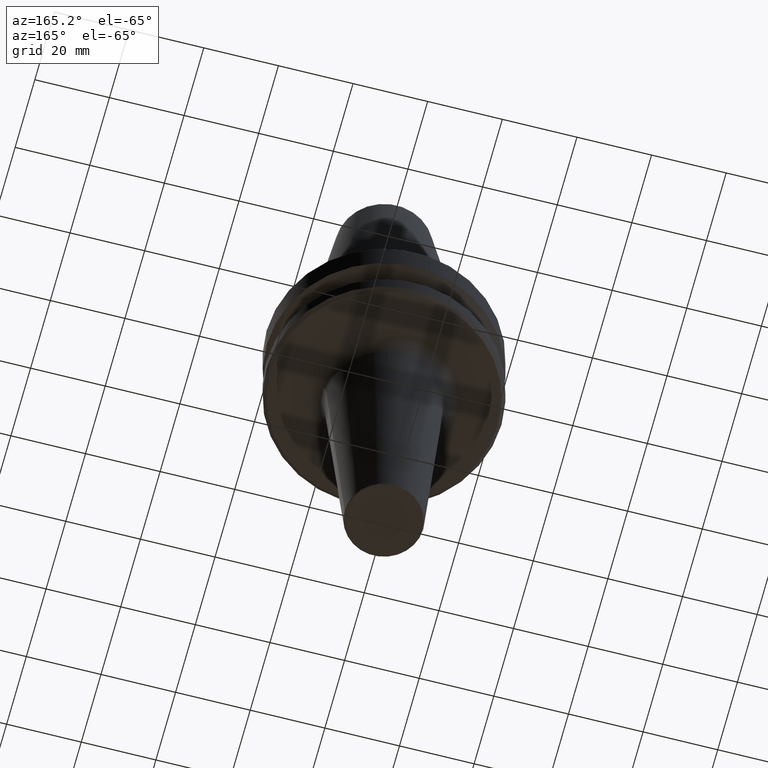
[diagram: clean part render]
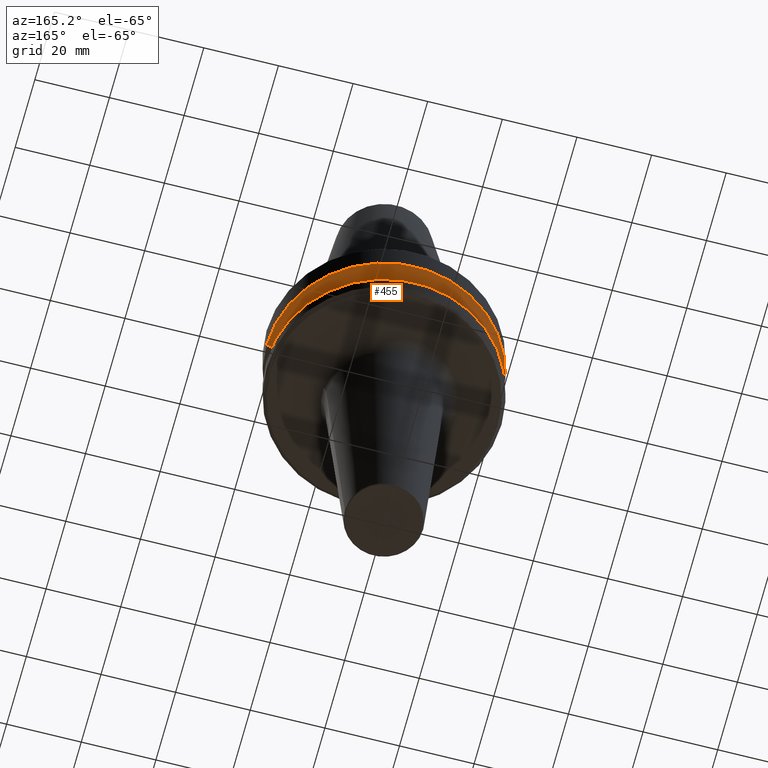
[diagram: same view with one face highlighted and labeled with its STEP entity id]
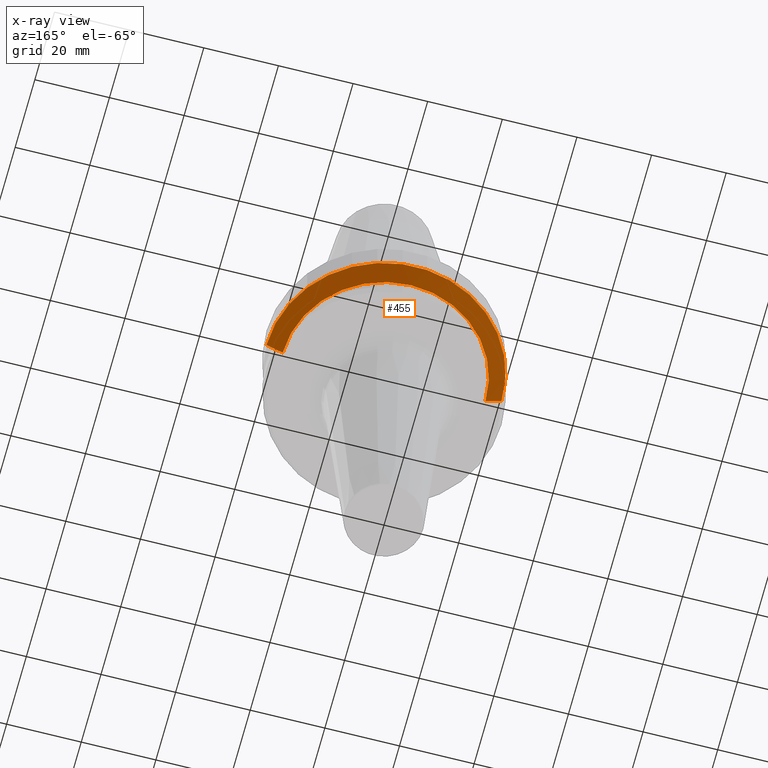
[diagram: x-ray of the same camera — body ghosted, the highlighted face saturated]
A machine part, auxiliary view. The second image highlights one B-rep face of the part: STEP entity #455.
The next image is the same camera in x-ray: the body ghosted, the highlighted face saturated — about 0% of this face is hidden behind the body in this view.
In plain terms, the highlighted conical surface has half-angle 60 deg.
Its self-contained STEP definition (entity closure, byte-faithful):
#7 = DIRECTION ( 'NONE',  ( 0.8660254037844383700, 0.0000000000000000000, 0.5000000000000003300 ) ) ;
#47 = DIRECTION ( 'NONE',  ( -0.0000000000000000000, -0.0000000000000000000, 1.000000000000000000 ) ) ;
#50 = ORIENTED_EDGE ( 'NONE', *, *, #453, .F. ) ;
#60 = CIRCLE ( 'NONE', #880, 31.50000000000008500 ) ;
#86 = ORIENTED_EDGE ( 'NONE', *, *, #662, .T. ) ;
#96 = EDGE_CURVE ( 'NONE', #301, #680, #295, .T. ) ;
#113 = CARTESIAN_POINT ( 'NONE',  ( 31.50000000000008500, 0.0000000000000000000, -76.99985799368391800 ) ) ;
#161 = CARTESIAN_POINT ( 'NONE',  ( 0.0000000000000000000, 0.0000000000000000000, -79.50000000000012800 ) ) ;
#207 = EDGE_CURVE ( 'NONE', #301, #811, #800, .T. ) ;
#248 = DIRECTION ( 'NONE',  ( 1.000000000000000000, 0.0000000000000000000, 0.0000000000000000000 ) ) ;
#255 = CONICAL_SURFACE ( 'NONE', #571, 31.50000000000008500, 1.047197551196597400 ) ;
#295 = LINE ( 'NONE', #974, #684 ) ;
#301 = VERTEX_POINT ( 'NONE', #728 ) ;
#313 = FACE_OUTER_BOUND ( 'NONE', #802, .T. ) ;
#333 = VERTEX_POINT ( 'NONE', #392 ) ;
#376 = CARTESIAN_POINT ( 'NONE',  ( 0.0000000000000000000, 0.0000000000000000000, -76.99985799368391800 ) ) ;
#392 = CARTESIAN_POINT ( 'NONE',  ( -31.50000000000008500, 3.857637417314172900E-015, -76.99985799368391800 ) ) ;
#408 = ORIENTED_EDGE ( 'NONE', *, *, #96, .F. ) ;
#453 = EDGE_CURVE ( 'NONE', #680, #333, #60, .T. ) ;
#455 = ADVANCED_FACE ( 'NONE', ( #313 ), #255, .T. ) ;
#469 = DIRECTION ( 'NONE',  ( 1.000000000000000000, 0.0000000000000000000, 0.0000000000000000000 ) ) ;
#571 = AXIS2_PLACEMENT_3D ( 'NONE', #1036, #1005, #469 ) ;
#575 = VECTOR ( 'NONE', #1009, 1000.000000000000100 ) ;
#594 = LINE ( 'NONE', #847, #575 ) ;
#602 = DIRECTION ( 'NONE',  ( 1.000000000000000000, 0.0000000000000000000, 0.0000000000000000000 ) ) ;
#662 = EDGE_CURVE ( 'NONE', #811, #333, #594, .T. ) ;
#680 = VERTEX_POINT ( 'NONE', #113 ) ;
#684 = VECTOR ( 'NONE', #7, 1000.000000000000100 ) ;
#719 = DIRECTION ( 'NONE',  ( -0.0000000000000000000, -0.0000000000000000000, 1.000000000000000000 ) ) ;
#728 = CARTESIAN_POINT ( 'NONE',  ( 27.16962701892322600, 0.0000000000000000000, -79.50000000000012800 ) ) ;
#777 = AXIS2_PLACEMENT_3D ( 'NONE', #161, #719, #248 ) ;
#780 = CARTESIAN_POINT ( 'NONE',  ( -27.16962701892322600, 3.592478546794674900E-015, -79.50000000000012800 ) ) ;
#800 = CIRCLE ( 'NONE', #777, 27.16962701892322600 ) ;
#802 = EDGE_LOOP ( 'NONE', ( #803, #86, #50, #408 ) ) ;
#803 = ORIENTED_EDGE ( 'NONE', *, *, #207, .T. ) ;
#811 = VERTEX_POINT ( 'NONE', #780 ) ;
#847 = CARTESIAN_POINT ( 'NONE',  ( -31.50000000000008500, 3.857637417314172900E-015, -76.99985799368391800 ) ) ;
#880 = AXIS2_PLACEMENT_3D ( 'NONE', #376, #47, #602 ) ;
#974 = CARTESIAN_POINT ( 'NONE',  ( 31.50000000000008500, 0.0000000000000000000, -76.99985799368391800 ) ) ;
#1005 = DIRECTION ( 'NONE',  ( -0.0000000000000000000, -0.0000000000000000000, 1.000000000000000000 ) ) ;
#1009 = DIRECTION ( 'NONE',  ( -0.8660254037844383700, 1.060575238724906500E-016, 0.5000000000000003300 ) ) ;
#1036 = CARTESIAN_POINT ( 'NONE',  ( 0.0000000000000000000, 0.0000000000000000000, -76.99985799368391800 ) ) ;